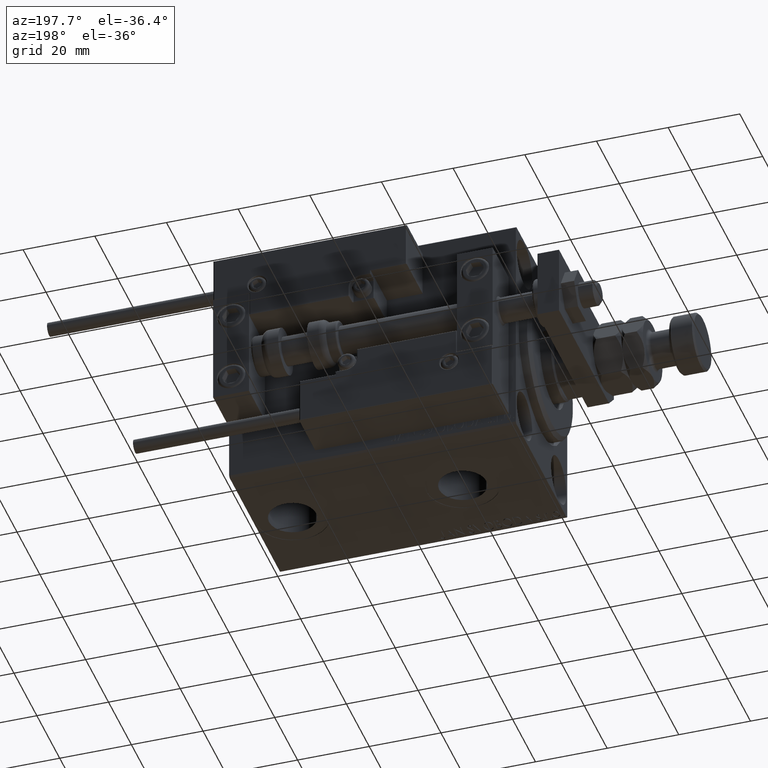
[diagram: clean part render]
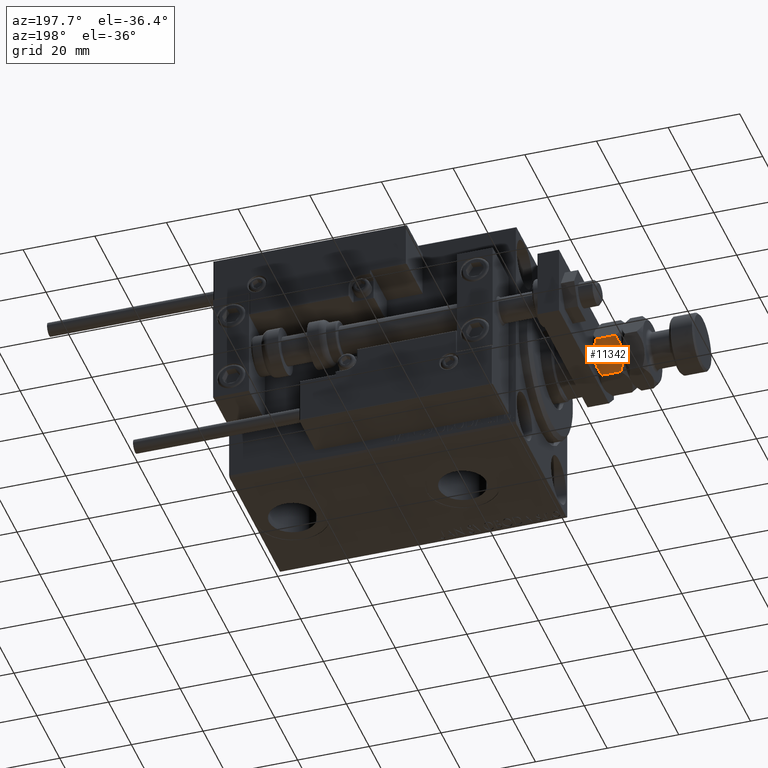
[diagram: same view with one face highlighted and labeled with its STEP entity id]
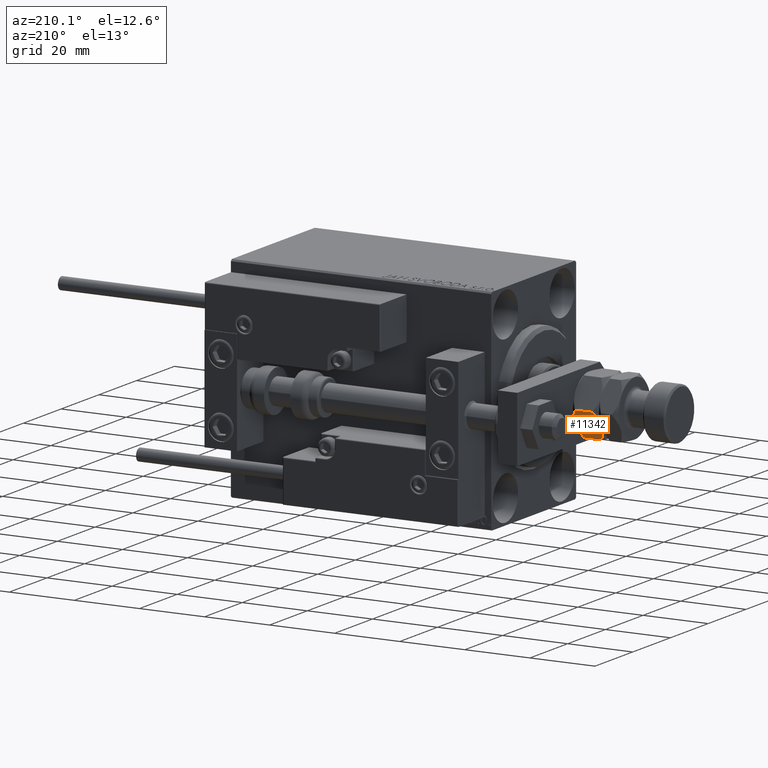
[diagram: same view with one face highlighted and labeled with its STEP entity id]
A machine part, auxiliary view. The second image highlights one B-rep face of the part: STEP entity #11342.
A second angle (auxiliary view) of the same face is appended — the face is thin or edge-on in the first view.
In plain terms, the highlighted planar face has unit normal (0, -0.866, 0.5).
Its self-contained STEP definition (entity closure, byte-faithful):
#344 = FACE_OUTER_BOUND ( 'NONE', #36446, .T. ) ;
#367 = ORIENTED_EDGE ( 'NONE', *, *, #31540, .T. ) ;
#1128 = DIRECTION ( 'NONE',  ( 0.4999999999999995559, -0.8660254037844389297, 0.000000000000000000 ) ) ;
#2629 = ORIENTED_EDGE ( 'NONE', *, *, #37217, .F. ) ;
#2717 = CARTESIAN_POINT ( 'NONE',  ( 0.000000000000000000, 9.814954576223636096, 8.000000000000000000 ) ) ;
#3010 = CARTESIAN_POINT ( 'NONE',  ( -4.989245346831672201, 6.934412432177284202, 8.000000000000005329 ) ) ;
#3075 = CARTESIAN_POINT ( 'NONE',  ( -4.249999999999996447, 7.361215932167731957, 0.000000000000000000 ) ) ;
#3372 = CARTESIAN_POINT ( 'NONE',  ( -2.766281260884825510, 8.217841345597568292, 7.839178292058173625 ) ) ;
#3933 = B_SPLINE_CURVE_WITH_KNOTS ( 'NONE', 3,
 ( #19905, #32268, #12279, #8344, #3372, #24384, #19394, #35433 ),
 .UNSPECIFIED., .F., .F.,
 ( 4, 2, 2, 4 ),
 ( 2.544313836662431582E-07, 0.002543776790731950600, 0.003815537970406090908, 0.005087299150080232084 ),
 .UNSPECIFIED. ) ;
#5681 = CARTESIAN_POINT ( 'NONE',  ( -2.784079206026081721, 8.207565697179243003, 0.1305202873832130295 ) ) ;
#6259 = CARTESIAN_POINT ( 'NONE',  ( -4.622229978650556070, 7.146308853793382987, -2.126899730555548151E-15 ) ) ;
#6463 = VERTEX_POINT ( 'NONE', #40004 ) ;
#8344 = CARTESIAN_POINT ( 'NONE',  ( -2.407069963478076779, 8.425232084851307590, 7.746375910675348919 ) ) ;
#9156 = ORIENTED_EDGE ( 'NONE', *, *, #33085, .F. ) ;
#9265 = PLANE ( 'NONE',  #21860 ) ;
#10195 = CARTESIAN_POINT ( 'NONE',  ( -8.500000000000001776, 4.907477288111821601, 1.314954576223634097 ) ) ;
#11126 = ORIENTED_EDGE ( 'NONE', *, *, #32238, .F. ) ;
#11160 = CARTESIAN_POINT ( 'NONE',  ( -7.149107353189443792, 5.687415521394179940, 7.399061587263880746 ) ) ;
#11342 = ADVANCED_FACE ( 'NONE', ( #344 ), #9265, .F. ) ;
#12019 = VECTOR ( 'NONE', #27813, 1000.000000000000000 ) ;
#12279 = CARTESIAN_POINT ( 'NONE',  ( -1.348005192929855323, 9.036683415216572257, 7.396790787579877069 ) ) ;
#12692 = CARTESIAN_POINT ( 'NONE',  ( 0.000000000000000000, 9.814954576223636096, 8.000000000000000000 ) ) ;
#16547 = EDGE_CURVE ( 'NONE', #32056, #6463, #23555, .T. ) ;
#17003 = CARTESIAN_POINT ( 'NONE',  ( -0.6656893889372521578, 9.430618628324037189, 0.9306186283239277213 ) ) ;
#17162 = DIRECTION ( 'NONE',  ( 0.8660254037844389297, 0.4999999999999995559, 0.000000000000000000 ) ) ;
#17939 = B_SPLINE_CURVE_WITH_KNOTS ( 'NONE', 3,
 ( #35852, #3010, #50851, #11160, #27969, #39261 ),
 .UNSPECIFIED., .F., .F.,
 ( 4, 2, 4 ),
 ( 0.005087299150080232084, 0.007613005268011854842, 0.01013871138594347847 ),
 .UNSPECIFIED. ) ;
#18923 = VERTEX_POINT ( 'NONE', #42430 ) ;
#19028 = ORIENTED_EDGE ( 'NONE', *, *, #16547, .F. ) ;
#19128 = CARTESIAN_POINT ( 'NONE',  ( -8.500000000000001776, 4.907477288111821601, 1.314954576223634097 ) ) ;
#19394 = CARTESIAN_POINT ( 'NONE',  ( -3.877770021349439045, 7.576123010542077374, 8.000000000000001776 ) ) ;
#19905 = CARTESIAN_POINT ( 'NONE',  ( -2.175848833159079736E-16, 9.814954576223636096, 6.685045423776372786 ) ) ;
#20431 = LINE ( 'NONE', #24120, #12019 ) ;
#20920 = CARTESIAN_POINT ( 'NONE',  ( -3.510754653168324246, 7.788019432158175270, -2.226002585384300502E-15 ) ) ;
#21860 = AXIS2_PLACEMENT_3D ( 'NONE', #12692, #1128, #17162 ) ;
#23555 = B_SPLINE_CURVE_WITH_KNOTS ( 'NONE', 3,
 ( #10195, #39068, #50914, #43025, #39328, #42509, #6259, #3075 ),
 .UNSPECIFIED., .F., .F.,
 ( 4, 2, 2, 4 ),
 ( 2.544313836674336100E-07, 0.002543776790731957973, 0.003815537970406101317, 0.005087299150080244227 ),
 .UNSPECIFIED. ) ;
#23628 = CARTESIAN_POINT ( 'NONE',  ( 1.960053746949402388E-16, 9.814954576223636096, 1.314954576223628546 ) ) ;
#23721 = VECTOR ( 'NONE', #47128, 1000.000000000000000 ) ;
#23830 = VERTEX_POINT ( 'NONE', #48993 ) ;
#24120 = CARTESIAN_POINT ( 'NONE',  ( -8.500000000000001776, 4.907477288111821601, 8.000000000000000000 ) ) ;
#24384 = CARTESIAN_POINT ( 'NONE',  ( -3.499970675361005590, 7.794245564648163871, 7.966263250401637741 ) ) ;
#25147 = CARTESIAN_POINT ( 'NONE',  ( 1.960053746949402388E-16, 9.814954576223636096, 1.314954576223628546 ) ) ;
#25506 = VERTEX_POINT ( 'NONE', #45031 ) ;
#25920 = CARTESIAN_POINT ( 'NONE',  ( -1.350892646810552433, 9.035016342941277756, 0.6009384127361191430 ) ) ;
#26624 = LINE ( 'NONE', #2717, #23721 ) ;
#27813 = DIRECTION ( 'NONE',  ( -0.000000000000000000, -0.000000000000000000, -1.000000000000000000 ) ) ;
#27969 = CARTESIAN_POINT ( 'NONE',  ( -7.834310611062749174, 5.291813236011422283, 7.069381371676069392 ) ) ;
#28577 = ORIENTED_EDGE ( 'NONE', *, *, #38089, .F. ) ;
#31540 = EDGE_CURVE ( 'NONE', #23830, #50872, #26624, .T. ) ;
#32056 = VERTEX_POINT ( 'NONE', #19128 ) ;
#32238 = EDGE_CURVE ( 'NONE', #23830, #18923, #3933, .T. ) ;
#32268 = CARTESIAN_POINT ( 'NONE',  ( -0.6664608216042845479, 9.430173241466064837, 7.069826758533944044 ) ) ;
#33085 = EDGE_CURVE ( 'NONE', #25506, #32056, #20431, .T. ) ;
#35433 = CARTESIAN_POINT ( 'NONE',  ( -4.249999999999994671, 7.361215932167727516, 8.000000000000000000 ) ) ;
#35852 = CARTESIAN_POINT ( 'NONE',  ( -4.249999999999994671, 7.361215932167727516, 8.000000000000000000 ) ) ;
#36446 = EDGE_LOOP ( 'NONE', ( #19028, #9156, #2629, #11126, #367, #28577 ) ) ;
#37217 = EDGE_CURVE ( 'NONE', #18923, #25506, #17939, .T. ) ;
#38089 = EDGE_CURVE ( 'NONE', #6463, #50872, #51717, .T. ) ;
#39068 = CARTESIAN_POINT ( 'NONE',  ( -7.833539178395718672, 5.292258622869395523, 0.9301732414660626169 ) ) ;
#39261 = CARTESIAN_POINT ( 'NONE',  ( -8.500000000000001776, 4.907477288111821601, 6.685045423776368345 ) ) ;
#39328 = CARTESIAN_POINT ( 'NONE',  ( -5.733718739115173157, 6.504590518737894733, 0.1608217079418319817 ) ) ;
#40004 = CARTESIAN_POINT ( 'NONE',  ( -4.249999999999996447, 7.361215932167731957, 0.000000000000000000 ) ) ;
#40905 = CARTESIAN_POINT ( 'NONE',  ( -4.249999999999996447, 7.361215932167731957, 0.000000000000000000 ) ) ;
#42430 = CARTESIAN_POINT ( 'NONE',  ( -4.249999999999994671, 7.361215932167727516, 8.000000000000000000 ) ) ;
#42509 = CARTESIAN_POINT ( 'NONE',  ( -5.000029324638989081, 6.928186299687298266, 0.03373674959836554799 ) ) ;
#43025 = CARTESIAN_POINT ( 'NONE',  ( -6.092930036521920556, 6.297199779484152771, 0.2536240893246534123 ) ) ;
#45031 = CARTESIAN_POINT ( 'NONE',  ( -8.500000000000001776, 4.907477288111821601, 6.685045423776368345 ) ) ;
#47128 = DIRECTION ( 'NONE',  ( -0.000000000000000000, -0.000000000000000000, -1.000000000000000000 ) ) ;
#48993 = CARTESIAN_POINT ( 'NONE',  ( -2.175848833159079736E-16, 9.814954576223636096, 6.685045423776372786 ) ) ;
#50851 = CARTESIAN_POINT ( 'NONE',  ( -5.715920793973915615, 6.514866167156221799, 7.869479712616790579 ) ) ;
#50872 = VERTEX_POINT ( 'NONE', #23628 ) ;
#50914 = CARTESIAN_POINT ( 'NONE',  ( -7.151994807070144233, 5.685748449118888104, 0.6032092124201268168 ) ) ;
#51717 = B_SPLINE_CURVE_WITH_KNOTS ( 'NONE', 3,
 ( #40905, #20920, #5681, #25920, #17003, #25147 ),
 .UNSPECIFIED., .F., .F.,
 ( 4, 2, 4 ),
 ( 0.005087299150080244227, 0.007613005268011861781, 0.01013871138594347847 ),
 .UNSPECIFIED. ) ;